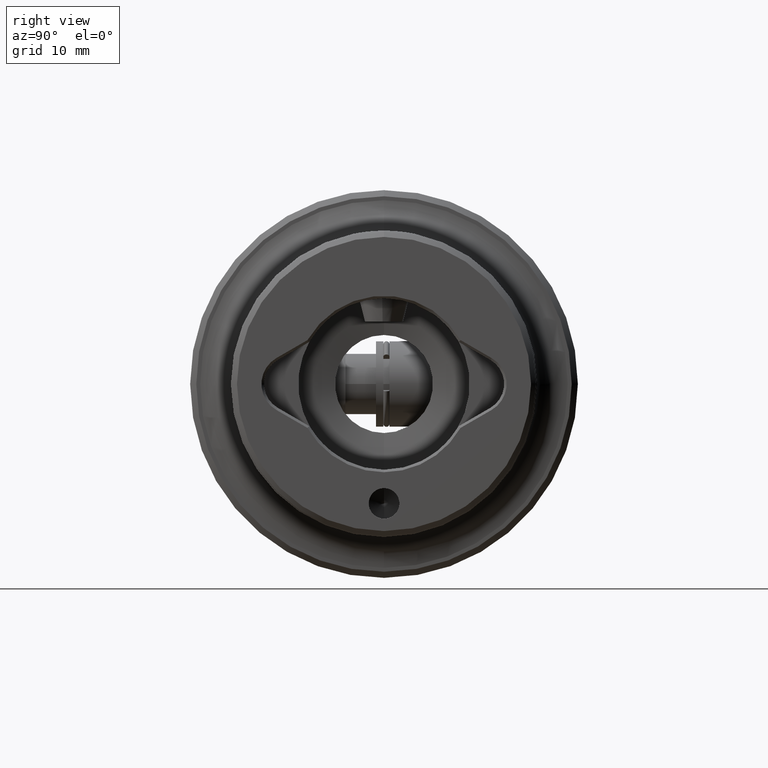
[diagram: clean part render]
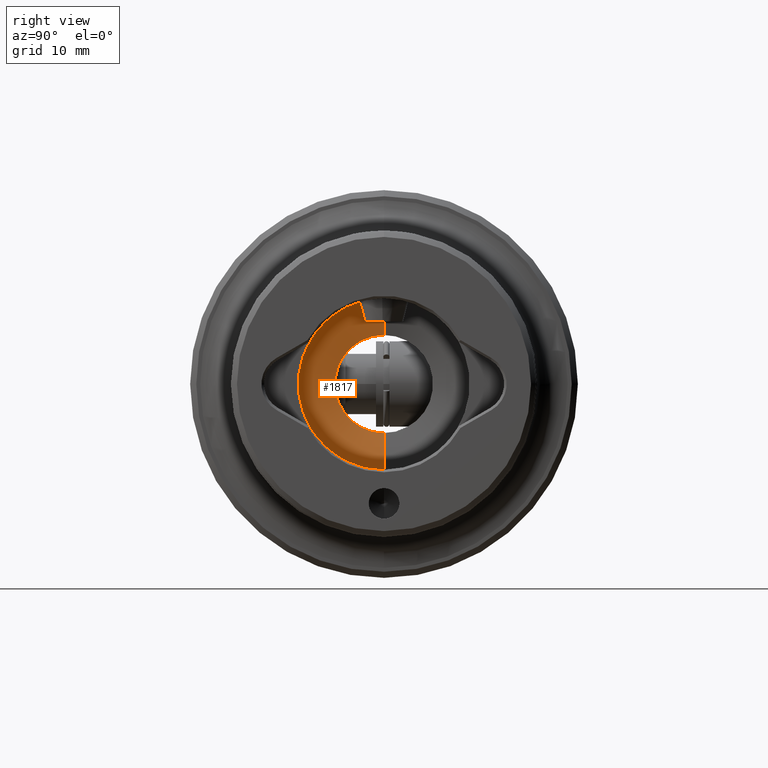
[diagram: same view with one face highlighted and labeled with its STEP entity id]
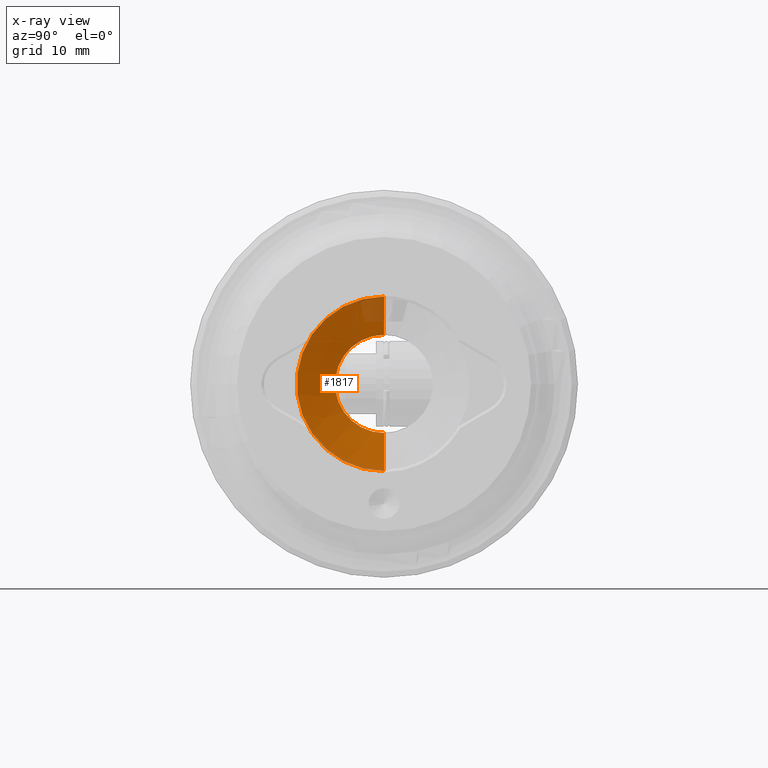
[diagram: x-ray of the same camera — body ghosted, the highlighted face saturated]
A machine part, right view. The second image highlights one B-rep face of the part: STEP entity #1817.
The next image is the same camera in x-ray: the body ghosted, the highlighted face saturated — about 11% of this face is hidden behind the body in this view.
In plain terms, the highlighted conical surface has half-angle 77 deg.
Its self-contained STEP definition (entity closure, byte-faithful):
#55 = ORIENTED_EDGE ( 'NONE', *, *, #4043, .T. ) ;
#192 = CARTESIAN_POINT ( 'NONE',  ( 51.00000000000000700, 0.0000000000000000000, -14.25000000000000000 ) ) ;
#277 = DIRECTION ( 'NONE',  ( 0.0000000000000000000, 0.0000000000000000000, -1.000000000000000000 ) ) ;
#353 = VECTOR ( 'NONE', #5224, 1000.000000000000100 ) ;
#384 = VERTEX_POINT ( 'NONE', #2944 ) ;
#471 = LINE ( 'NONE', #192, #4494 ) ;
#690 = AXIS2_PLACEMENT_3D ( 'NONE', #2308, #5173, #2722 ) ;
#806 = EDGE_CURVE ( 'NONE', #3148, #987, #471, .T. ) ;
#987 = VERTEX_POINT ( 'NONE', #1532 ) ;
#1011 = DIRECTION ( 'NONE',  ( 0.2249510543438620900, 0.0000000000000000000, -0.9743700647852359100 ) ) ;
#1436 = LINE ( 'NONE', #4822, #353 ) ;
#1520 = EDGE_CURVE ( 'NONE', #4452, #987, #4956, .T. ) ;
#1532 = CARTESIAN_POINT ( 'NONE',  ( 51.00000000000000700, 0.0000000000000000000, -14.25000000000000000 ) ) ;
#1657 = CONICAL_SURFACE ( 'NONE', #1920, 14.25000000000000000, 1.343903524035636700 ) ;
#1733 = CARTESIAN_POINT ( 'NONE',  ( 51.00000000000000700, 0.0000000000000000000, 0.0000000000000000000 ) ) ;
#1791 = FACE_OUTER_BOUND ( 'NONE', #4491, .T. ) ;
#1817 = ADVANCED_FACE ( 'NONE', ( #1791 ), #1657, .F. ) ;
#1920 = AXIS2_PLACEMENT_3D ( 'NONE', #1733, #2939, #4538 ) ;
#2308 = CARTESIAN_POINT ( 'NONE',  ( 51.00000000000000700, 0.0000000000000000000, 0.0000000000000000000 ) ) ;
#2476 = ORIENTED_EDGE ( 'NONE', *, *, #1520, .T. ) ;
#2684 = DIRECTION ( 'NONE',  ( 1.000000000000000000, -0.0000000000000000000, -0.0000000000000000000 ) ) ;
#2706 = CIRCLE ( 'NONE', #2867, 8.000000000000000000 ) ;
#2722 = DIRECTION ( 'NONE',  ( 0.0000000000000000000, 0.0000000000000000000, -1.000000000000000000 ) ) ;
#2867 = AXIS2_PLACEMENT_3D ( 'NONE', #5124, #2684, #277 ) ;
#2910 = ORIENTED_EDGE ( 'NONE', *, *, #806, .F. ) ;
#2939 = DIRECTION ( 'NONE',  ( 1.000000000000000000, -0.0000000000000000000, -0.0000000000000000000 ) ) ;
#2944 = CARTESIAN_POINT ( 'NONE',  ( 49.55707380546525800, 9.797174393178825700E-016, 8.000000000000000000 ) ) ;
#3093 = EDGE_CURVE ( 'NONE', #384, #3148, #2706, .T. ) ;
#3148 = VERTEX_POINT ( 'NONE', #4710 ) ;
#4005 = CARTESIAN_POINT ( 'NONE',  ( 51.00000000000000700, 1.745121688784978200E-015, 14.25000000000000000 ) ) ;
#4043 = EDGE_CURVE ( 'NONE', #384, #4452, #1436, .T. ) ;
#4104 = ORIENTED_EDGE ( 'NONE', *, *, #3093, .F. ) ;
#4452 = VERTEX_POINT ( 'NONE', #4005 ) ;
#4491 = EDGE_LOOP ( 'NONE', ( #4104, #55, #2476, #2910 ) ) ;
#4494 = VECTOR ( 'NONE', #1011, 1000.000000000000100 ) ;
#4538 = DIRECTION ( 'NONE',  ( 0.0000000000000000000, 0.0000000000000000000, -1.000000000000000000 ) ) ;
#4710 = CARTESIAN_POINT ( 'NONE',  ( 49.55707380546525800, 0.0000000000000000000, -8.000000000000000000 ) ) ;
#4822 = CARTESIAN_POINT ( 'NONE',  ( 51.00000000000000700, 1.745121688784978200E-015, 14.25000000000000000 ) ) ;
#4956 = CIRCLE ( 'NONE', #690, 14.25000000000000000 ) ;
#5124 = CARTESIAN_POINT ( 'NONE',  ( 49.55707380546525800, 0.0000000000000000000, 0.0000000000000000000 ) ) ;
#5173 = DIRECTION ( 'NONE',  ( 1.000000000000000000, 0.0000000000000000000, 0.0000000000000000000 ) ) ;
#5224 = DIRECTION ( 'NONE',  ( 0.2249510543438620900, 1.193259181024238200E-016, 0.9743700647852359100 ) ) ;